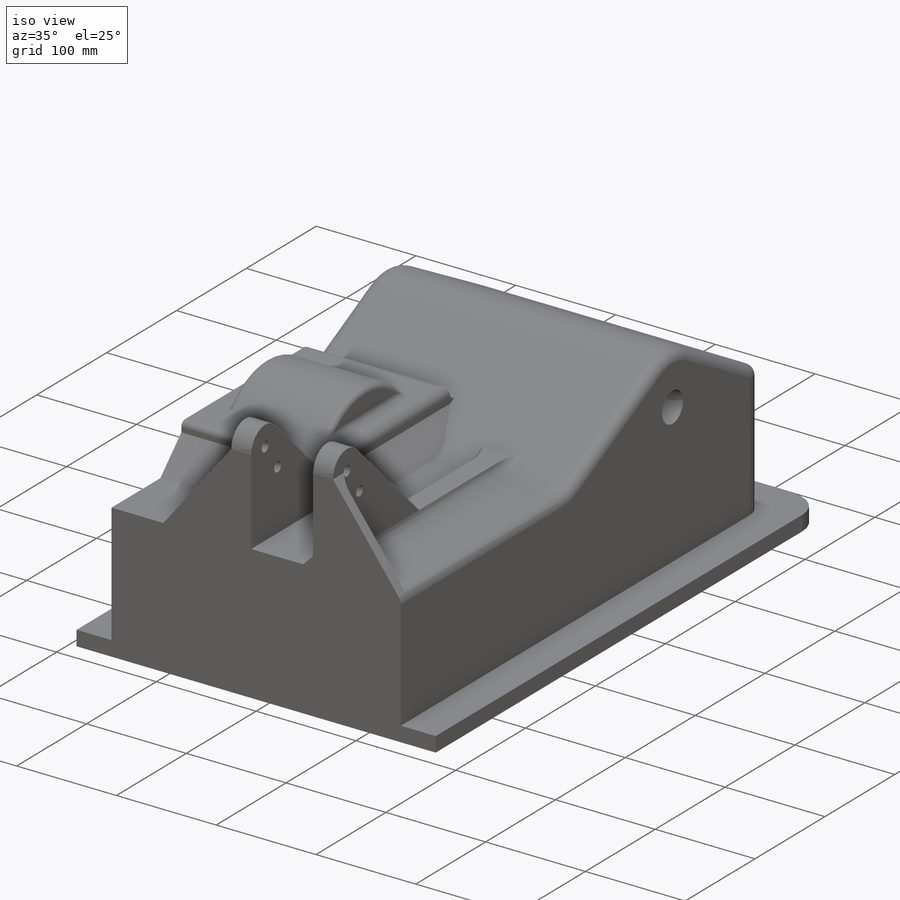
[diagram: iso view]
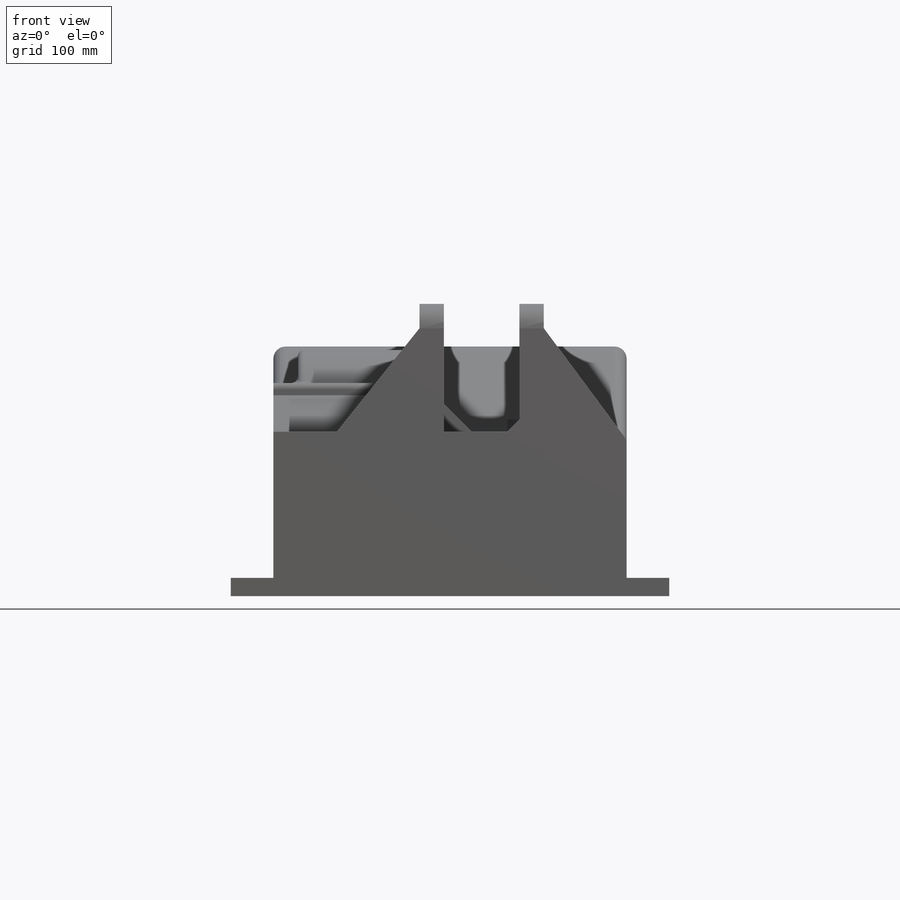
[diagram: front view]
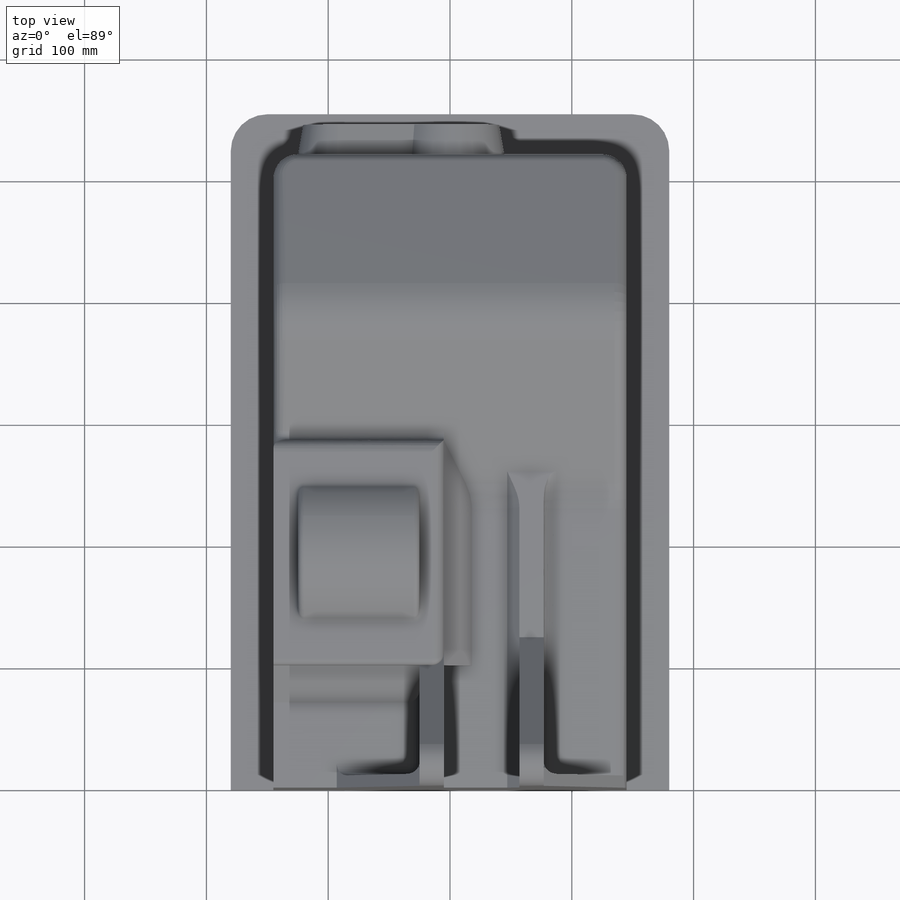
[diagram: top view]
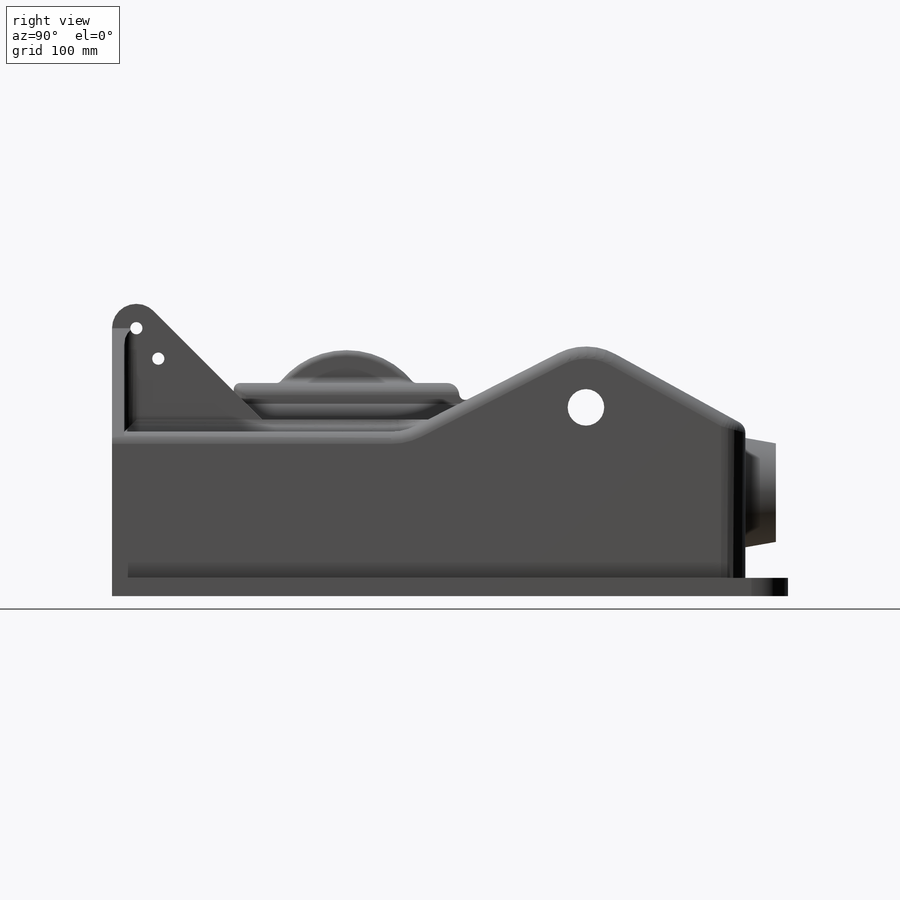
[diagram: right view]
SOLIDWORKS PART (.sldprt)
format: sldprt  version: not decoded by parser v0  size: 482,816 bytes
history: native  units: mm
features: sketch x9, extrude x9, fillet x3, material x1, shell x1, chamfer x1 (+13 scaffold rows collapsed)
feature tree (37):
  scaffold x13  (default folders/planes/origin — collapsed)
  material  "Material <not specified>"
  sketch  "Sketch3"  dims[c1.D6=50.0mm c1.D7=45.0mm c1.D9=30.0mm c1.D1=520.0mm c1.D2=120.0mm c1.D3=125.0mm c1.D4=130.0mm c1.D5=150.0mm c2.D6=130.0mm c3.D6=~118.842353deg c4.D6=~76.593294mm c5.D6=~207.049854deg c6.D6=150.0mm c6.D8=140.0mm]
  extrude  "Boss-Extrude2"  Depth=290mm
  shell  "Shell2"  Thickness=20mm
  sketch  "Sketch5"  dims[c1.D1=45.0mm c1.D4=~40.591825mm c1.D2=32.5mm c1.D3=170.0mm c2.D4=145.0mm c2.D5=55.0mm]
  extrude  "Boss-Extrude3"  Depth=25mm
  sketch  "Sketch6"  dims[D1=70.0mm D2=185.0mm D3=30.0mm D4=30.0mm D5=40.0mm]
  extrude  "Boss-Extrude4"  Depth=140mm
  sketch  "Sketch7"  dims[c1.D2=20.0mm c1.D6=10.0mm c1.D7=10.0mm c1.D1=85.0mm c1.D3=~90.90168mm c2.D3=45.0deg c2.D4=75.0mm c2.D5=18.0mm c2.D6=25.0mm]
  extrude  "Boss-Extrude5"  Depth=20mm
  extrude  "Boss-Extrude6"  [1 undecoded]
  sketch  "Sketch7<2>"  dims[D1=20.0mm D19=150.0mm]
  sketch  "Sketch9"  dims[c1.D1=85.0mm c1.D2=68.0mm c1.D3=~108.853112mm c2.D2=170.0mm c2.D3=68.0mm c2.D4=68.0mm c2.D1=5.0mm]
  extrude  "Boss-Extrude7"  Depth=10mm
  chamfer  "Chamfer1"  Distance=10mm Angle=45deg
  sketch  "Sketch10"  dims[c1.D1=~49.132343mm c2.D1=45.0deg]
  extrude  "Boss-Extrude8"  [1 undecoded]
  sketch  "Sketch11"  dims[c1.D3=70.0mm c1.D1=192.5mm c1.D2=117.0mm c1.D4=~192.735293mm c1.D5=117.0mm c2.D1=117.0mm c2.D2=192.5mm c3.D1=43.0mm]
  extrude  "Boss-Extrude9"  Depth=100mm
  fillet  "Fillet1"  Radius=5mm
  fillet  "Fillet2"  Radius=10mm
  fillet  "Fillet3"  Radius=20mm
  sketch  "Sketch1"  dims[c1.D3=30.0mm c1.D1=360.0mm c1.D2=555.0mm c2.D1=0.0mm]
  extrude  "Boss-Extrude1"  Depth=15mm
decode coverage: 21 of 23 modeling features carry decoded parameters
note: ~ marks probable driven/reference dimensions
note: 2 parameter values undecoded
note: suppression state not decoded; provenance and decode notes live in map.json
